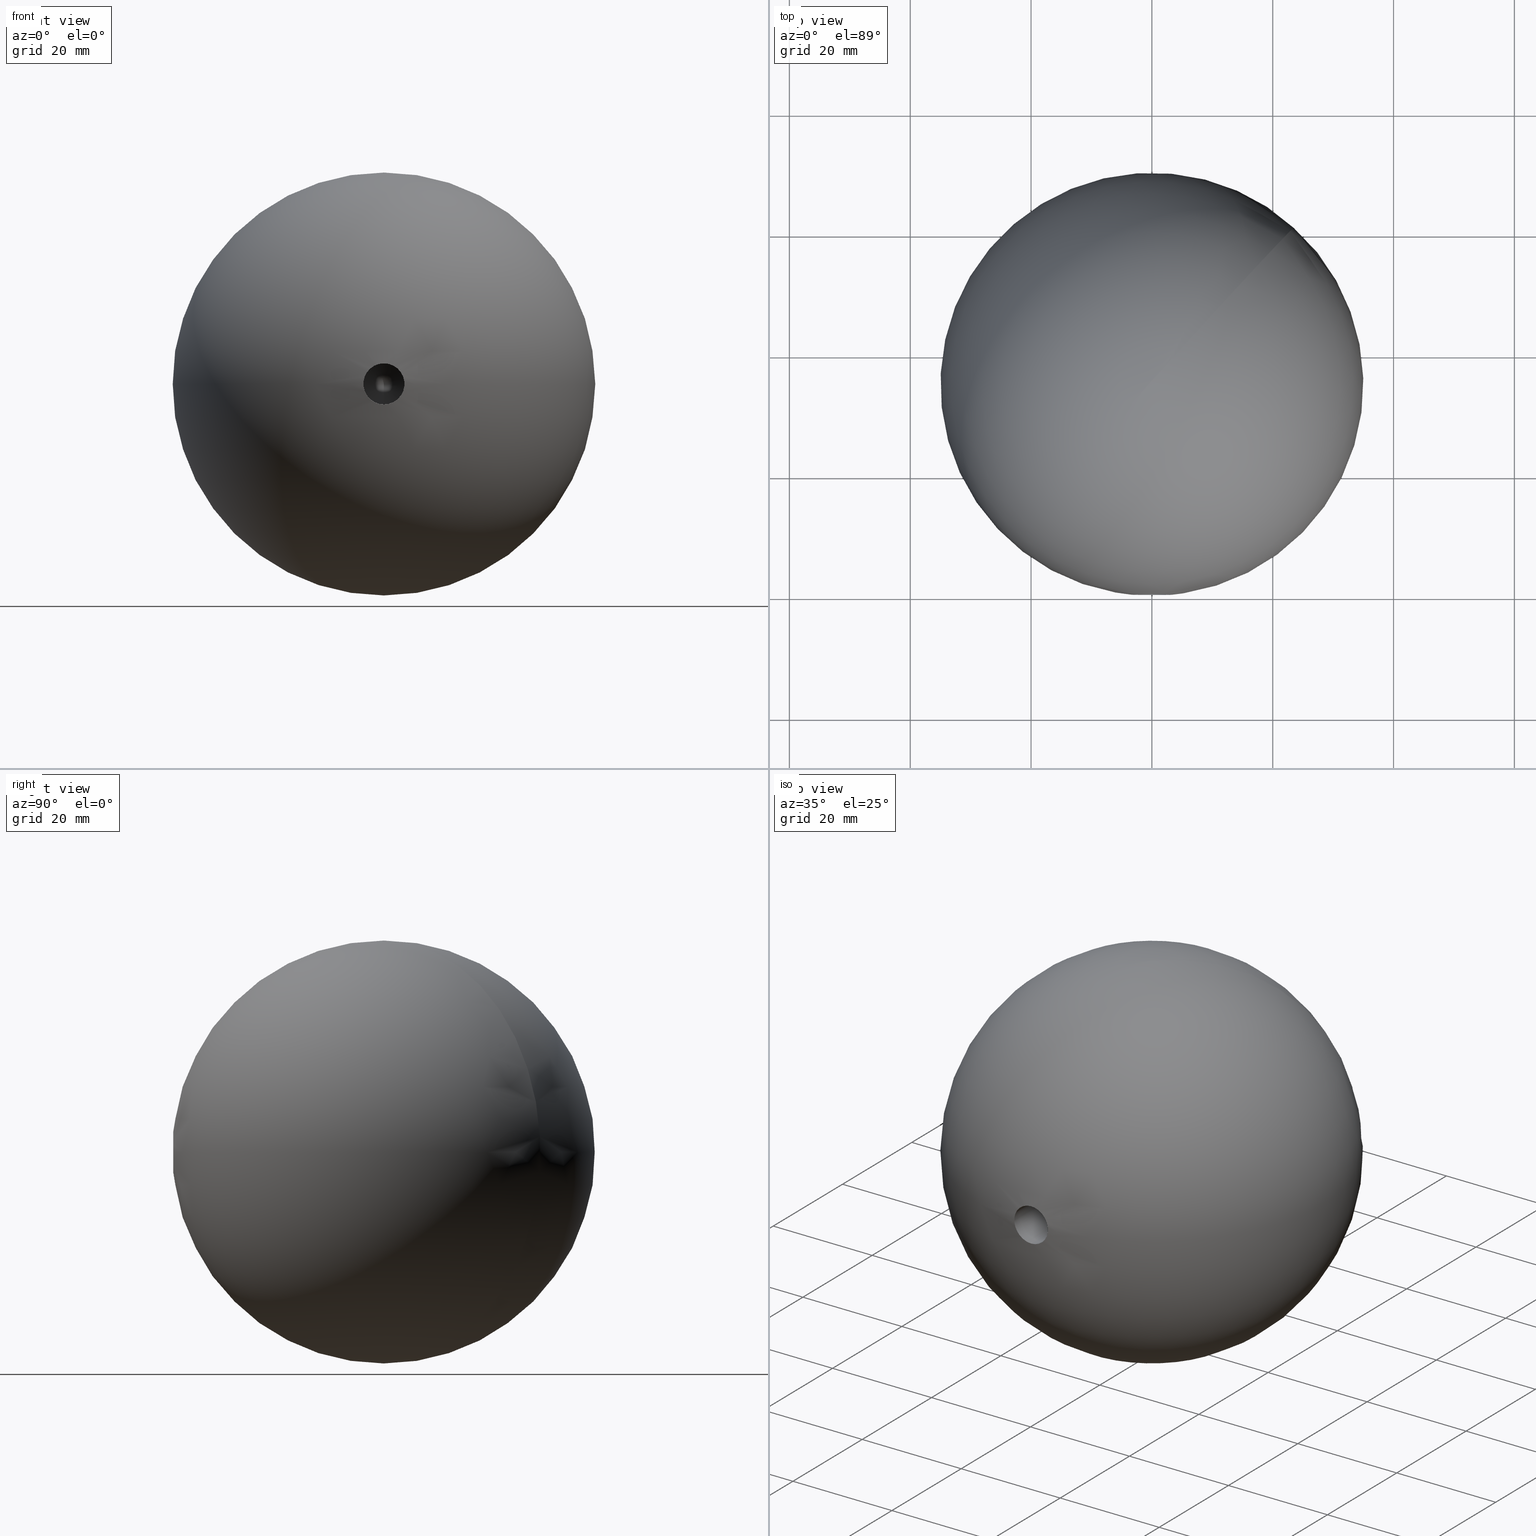
[diagram: canonical four-view strip — front | top / right | iso, engineering-drawing reading convention]
A machine part, canonical four-view strip (front | top / right | iso — engineering-drawing reading convention). The complete STEP part file that produces these views, byte-faithful:
ISO-10303-21;
HEADER;
FILE_DESCRIPTION (( 'STEP AP203' ),
    '1' );
FILE_NAME ('51070-240.step',
    '2023-09-08T07:10:45',
    ( '' ),
    ( '' ),
    'SwSTEP 2.0',
    'SolidWorks 2018',
    '' );
FILE_SCHEMA (( 'CONFIG_CONTROL_DESIGN' ));
ENDSEC;

DATA;
#1 = DATE_AND_TIME ( #26, #53 ) ;
#2 = DESIGN_CONTEXT ( 'detailed design', #38, 'design' ) ;
#3 = APPROVAL ( #51, 'UNSPECIFIED' ) ;
#4 = DIRECTION ( 'NONE',  ( -0.000000000000000000, -1.000000000000000000, -0.000000000000000000 ) ) ;
#5 = CIRCLE ( 'NONE', #121, 3.399999999999985256 ) ;
#6 = CARTESIAN_POINT ( 'NONE',  ( 0.000000000000000000, 25.99999999999999645, 0.000000000000000000 ) ) ;
#7 = APPLICATION_PROTOCOL_DEFINITION ( 'international standard', 'config_control_design', 1994, #120 ) ;
#8 = DATE_TIME_ROLE ( 'classification_date' ) ;
#9 = PERSON_AND_ORGANIZATION ( #33, #66 ) ;
#10 = CALENDAR_DATE ( 2023, 8, 9 ) ;
#11 = ORIENTED_EDGE ( 'NONE', *, *, #45, .T. ) ;
#12 = LOCAL_TIME ( 9, 10, 45.00000000000000000, #74 ) ;
#13 = DIRECTION ( 'NONE',  ( -0.000000000000000000, -1.000000000000000000, -0.000000000000000000 ) ) ;
#14 = ADVANCED_BREP_SHAPE_REPRESENTATION ( '51070-240', ( #76, #64 ), #90 ) ;
#15 = VERTEX_POINT ( 'NONE', #104 ) ;
#16 = FACE_OUTER_BOUND ( 'NONE', #132, .T. ) ;
#17 = LOCAL_TIME ( 9, 10, 45.00000000000000000, #42 ) ;
#18 = PRODUCT_DEFINITION_FORMATION_WITH_SPECIFIED_SOURCE ( 'ANY', '', #21, .NOT_KNOWN. ) ;
#19 = PRODUCT_DEFINITION_SHAPE ( 'NONE', 'NONE',  #30 ) ;
#20 = CARTESIAN_POINT ( 'NONE',  ( 0.000000000000000000, 0.000000000000000000, 0.000000000000000000 ) ) ;
#21 = PRODUCT ( '51070-240', '51070-240', '', ( #37 ) ) ;
#22 = CC_DESIGN_PERSON_AND_ORGANIZATION_ASSIGNMENT ( #128, #87, ( #21 ) ) ;
#23 = DIRECTION ( 'NONE',  ( -0.000000000000000000, 0.000000000000000000, -1.000000000000000000 ) ) ;
#24 = CLOSED_SHELL ( 'NONE', ( #63, #44, #94 ) ) ;
#25 = APPROVAL_STATUS ( 'not_yet_approved' ) ;
#26 = CALENDAR_DATE ( 2023, 8, 9 ) ;
#27 = ORIENTED_EDGE ( 'NONE', *, *, #80, .T. ) ;
#28 = CC_DESIGN_PERSON_AND_ORGANIZATION_ASSIGNMENT ( #111, #60, ( #18 ) ) ;
#29 = CYLINDRICAL_SURFACE ( 'NONE', #31, 3.399999999999987033 ) ;
#30 = PRODUCT_DEFINITION ( 'UNKNOWN', '', #18, #2 ) ;
#31 = AXIS2_PLACEMENT_3D ( 'NONE', #115, #13, #98 ) ;
#32 = CARTESIAN_POINT ( 'NONE',  ( 0.000000000000000000, 25.99999999999999645, 0.000000000000000000 ) ) ;
#33 = PERSON ( 'UNSPECIFIED', 'UNSPECIFIED', 'UNSPECIFIED', ('UNSPECIFIED'), ('UNSPECIFIED'), ('UNSPECIFIED') ) ;
#34 = PERSON_AND_ORGANIZATION_ROLE ( 'creator' ) ;
#35 = CC_DESIGN_PERSON_AND_ORGANIZATION_ASSIGNMENT ( #81, #57, ( #124 ) ) ;
#36 = COORDINATED_UNIVERSAL_TIME_OFFSET ( 1, 0, .AHEAD. ) ;
#37 = MECHANICAL_CONTEXT ( 'NONE', #120, 'mechanical' ) ;
#38 = APPLICATION_CONTEXT ( 'configuration controlled 3d designs of mechanical parts and assemblies' ) ;
#39 = CC_DESIGN_PERSON_AND_ORGANIZATION_ASSIGNMENT ( #70, #34, ( #30 ) ) ;
#40 = ORIENTED_EDGE ( 'NONE', *, *, #45, .F. ) ;
#41 = DATE_AND_TIME ( #97, #49 ) ;
#42 = COORDINATED_UNIVERSAL_TIME_OFFSET ( 1, 0, .AHEAD. ) ;
#43 = UNCERTAINTY_MEASURE_WITH_UNIT (LENGTH_MEASURE( 1.000000000000000082E-05 ), #69, 'distance_accuracy_value', 'NONE');
#44 = ADVANCED_FACE ( 'NONE', ( #61 ), #103, .F. ) ;
#45 = EDGE_CURVE ( 'NONE', #123, #123, #5, .T. ) ;
#46 = CC_DESIGN_DATE_AND_TIME_ASSIGNMENT ( #65, #8, ( #124 ) ) ;
#47 = CARTESIAN_POINT ( 'NONE',  ( -6.933347799794072061E-32, 35.00000000000000000, 0.000000000000000000 ) ) ;
#48 = EDGE_LOOP ( 'NONE', ( #84 ) ) ;
#49 = LOCAL_TIME ( 9, 10, 45.00000000000000000, #36 ) ;
#50 = APPROVAL ( #25, 'UNSPECIFIED' ) ;
#51 = APPROVAL_STATUS ( 'not_yet_approved' ) ;
#52 = APPLICATION_PROTOCOL_DEFINITION ( 'international standard', 'config_control_design', 1994, #38 ) ;
#53 = LOCAL_TIME ( 9, 10, 45.00000000000000000, #85 ) ;
#54 = CALENDAR_DATE ( 2023, 8, 9 ) ;
#55 = DIRECTION ( 'NONE',  ( 0.000000000000000000, 0.000000000000000000, -1.000000000000000000 ) ) ;
#56 = CARTESIAN_POINT ( 'NONE',  ( 0.000000000000000000, 25.99999999999999645, -3.399999999999985256 ) ) ;
#57 = PERSON_AND_ORGANIZATION_ROLE ( 'classification_officer' ) ;
#58 = SECURITY_CLASSIFICATION_LEVEL ( 'unclassified' ) ;
#59 = APPROVAL_ROLE ( '' ) ;
#60 = PERSON_AND_ORGANIZATION_ROLE ( 'design_supplier' ) ;
#61 = FACE_OUTER_BOUND ( 'NONE', #113, .T. ) ;
#62 = LOCAL_TIME ( 9, 10, 45.00000000000000000, #114 ) ;
#63 = ADVANCED_FACE ( 'NONE', ( #89 ), #110, .T. ) ;
#64 = AXIS2_PLACEMENT_3D ( 'NONE', #20, #67, #119 ) ;
#65 = DATE_AND_TIME ( #134, #17 ) ;
#66 = ORGANIZATION ( 'UNSPECIFIED', 'UNSPECIFIED', '' ) ;
#67 = DIRECTION ( 'NONE',  ( 0.000000000000000000, 0.000000000000000000, 1.000000000000000000 ) ) ;
#68 = CC_DESIGN_APPROVAL ( #3, ( #18 ) ) ;
#69 =( LENGTH_UNIT ( ) NAMED_UNIT ( * ) SI_UNIT ( .MILLI., .METRE. ) );
#70 = PERSON_AND_ORGANIZATION ( #33, #66 ) ;
#71 = FACE_OUTER_BOUND ( 'NONE', #122, .T. ) ;
#72 = PERSON_AND_ORGANIZATION ( #33, #66 ) ;
#73 = DIRECTION ( 'NONE',  ( 0.000000000000000000, 0.000000000000000000, 1.000000000000000000 ) ) ;
#74 = COORDINATED_UNIVERSAL_TIME_OFFSET ( 1, 0, .AHEAD. ) ;
#75 = DIRECTION ( 'NONE',  ( 0.000000000000000000, 0.000000000000000000, -1.000000000000000000 ) ) ;
#76 = MANIFOLD_SOLID_BREP ( 'M8 Gewindebohrung3', #24 ) ;
#77 = DATE_TIME_ROLE ( 'creation_date' ) ;
#78 = APPROVAL_STATUS ( 'not_yet_approved' ) ;
#79 = PERSON_AND_ORGANIZATION_ROLE ( 'creator' ) ;
#80 = EDGE_CURVE ( 'NONE', #15, #15, #91, .T. ) ;
#81 = PERSON_AND_ORGANIZATION ( #33, #66 ) ;
#82 = APPROVAL_PERSON_ORGANIZATION ( #72, #99, #59 ) ;
#83 = APPROVAL_PERSON_ORGANIZATION ( #117, #50, #109 ) ;
#84 = ORIENTED_EDGE ( 'NONE', *, *, #80, .F. ) ;
#85 = COORDINATED_UNIVERSAL_TIME_OFFSET ( 1, 0, .AHEAD. ) ;
#86 = DATE_AND_TIME ( #10, #62 ) ;
#87 = PERSON_AND_ORGANIZATION_ROLE ( 'design_owner' ) ;
#88 = CC_DESIGN_PERSON_AND_ORGANIZATION_ASSIGNMENT ( #9, #79, ( #18 ) ) ;
#89 = FACE_OUTER_BOUND ( 'NONE', #48, .T. ) ;
#90 =( GEOMETRIC_REPRESENTATION_CONTEXT ( 3 ) GLOBAL_UNCERTAINTY_ASSIGNED_CONTEXT ( ( #43 ) ) GLOBAL_UNIT_ASSIGNED_CONTEXT ( ( #69, #96, #127 ) ) REPRESENTATION_CONTEXT ( 'NONE', 'WORKASPACE' ) );
#91 = CIRCLE ( 'NONE', #100, 3.399999999999987033 ) ;
#92 = CC_DESIGN_APPROVAL ( #50, ( #30 ) ) ;
#93 = AXIS2_PLACEMENT_3D ( 'NONE', #47, #23, #125 ) ;
#94 = ADVANCED_FACE ( 'NONE', ( #16, #71 ), #29, .F. ) ;
#95 = AXIS2_PLACEMENT_3D ( 'NONE', #32, #106, #55 ) ;
#96 =( NAMED_UNIT ( * ) PLANE_ANGLE_UNIT ( ) SI_UNIT ( $, .RADIAN. ) );
#97 = CALENDAR_DATE ( 2023, 8, 9 ) ;
#98 = DIRECTION ( 'NONE',  ( 0.000000000000000000, 0.000000000000000000, -1.000000000000000000 ) ) ;
#99 = APPROVAL ( #78, 'UNSPECIFIED' ) ;
#100 = AXIS2_PLACEMENT_3D ( 'NONE', #118, #4, #73 ) ;
#101 = APPROVAL_PERSON_ORGANIZATION ( #131, #3, #108 ) ;
#102 = APPROVAL_DATE_TIME ( #1, #99 ) ;
#103 = CONICAL_SURFACE ( 'NONE', #95, 3.399999999999985256, 1.029744258676652979 ) ;
#104 = CARTESIAN_POINT ( 'NONE',  ( 0.000000000000000000, 0.1655343086764127225, 3.399999999999987033 ) ) ;
#105 = SHAPE_DEFINITION_REPRESENTATION ( #19, #14 ) ;
#106 = DIRECTION ( 'NONE',  ( -0.000000000000000000, -1.000000000000000000, -0.000000000000000000 ) ) ;
#107 = CC_DESIGN_DATE_AND_TIME_ASSIGNMENT ( #135, #77, ( #30 ) ) ;
#108 = APPROVAL_ROLE ( '' ) ;
#109 = APPROVAL_ROLE ( '' ) ;
#110 = SPHERICAL_SURFACE ( 'NONE', #93, 35.00000000000000000 ) ;
#111 = PERSON_AND_ORGANIZATION ( #33, #66 ) ;
#112 = CC_DESIGN_APPROVAL ( #99, ( #124 ) ) ;
#113 = EDGE_LOOP ( 'NONE', ( #11 ) ) ;
#114 = COORDINATED_UNIVERSAL_TIME_OFFSET ( 1, 0, .AHEAD. ) ;
#115 = CARTESIAN_POINT ( 'NONE',  ( 0.000000000000000000, 0.000000000000000000, 0.000000000000000000 ) ) ;
#116 = PRODUCT_RELATED_PRODUCT_CATEGORY ( 'detail', '', ( #21 ) ) ;
#117 = PERSON_AND_ORGANIZATION ( #33, #66 ) ;
#118 = CARTESIAN_POINT ( 'NONE',  ( 0.000000000000000000, 0.1655343086764127225, 0.000000000000000000 ) ) ;
#119 = DIRECTION ( 'NONE',  ( 1.000000000000000000, 0.000000000000000000, 0.000000000000000000 ) ) ;
#120 = APPLICATION_CONTEXT ( 'configuration controlled 3d designs of mechanical parts and assemblies' ) ;
#121 = AXIS2_PLACEMENT_3D ( 'NONE', #6, #126, #75 ) ;
#122 = EDGE_LOOP ( 'NONE', ( #40 ) ) ;
#123 = VERTEX_POINT ( 'NONE', #56 ) ;
#124 = SECURITY_CLASSIFICATION ( '', '', #58 ) ;
#125 = DIRECTION ( 'NONE',  ( -1.000000000000000000, -1.982541115402065110E-16, 0.000000000000000000 ) ) ;
#126 = DIRECTION ( 'NONE',  ( -0.000000000000000000, -1.000000000000000000, -0.000000000000000000 ) ) ;
#127 =( NAMED_UNIT ( * ) SI_UNIT ( $, .STERADIAN. ) SOLID_ANGLE_UNIT ( ) );
#128 = PERSON_AND_ORGANIZATION ( #33, #66 ) ;
#129 = CC_DESIGN_SECURITY_CLASSIFICATION ( #124, ( #18 ) ) ;
#130 = APPROVAL_DATE_TIME ( #86, #50 ) ;
#131 = PERSON_AND_ORGANIZATION ( #33, #66 ) ;
#132 = EDGE_LOOP ( 'NONE', ( #27 ) ) ;
#133 = APPROVAL_DATE_TIME ( #41, #3 ) ;
#134 = CALENDAR_DATE ( 2023, 8, 9 ) ;
#135 = DATE_AND_TIME ( #54, #12 ) ;
ENDSEC;
END-ISO-10303-21;
